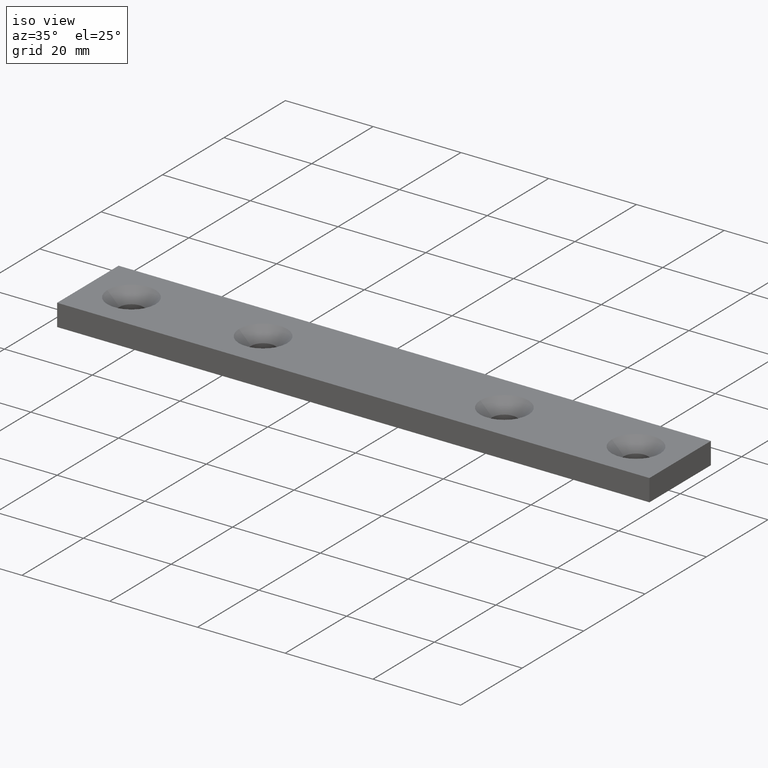
[diagram: clean part render]
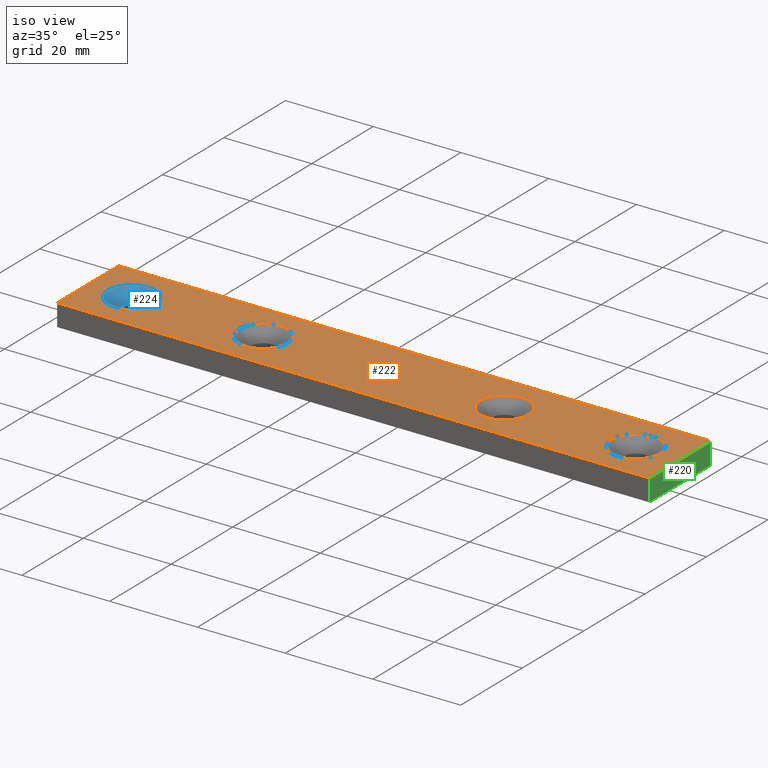
[diagram: same view with three faces highlighted in distinct colors, each labeled with its STEP entity id]
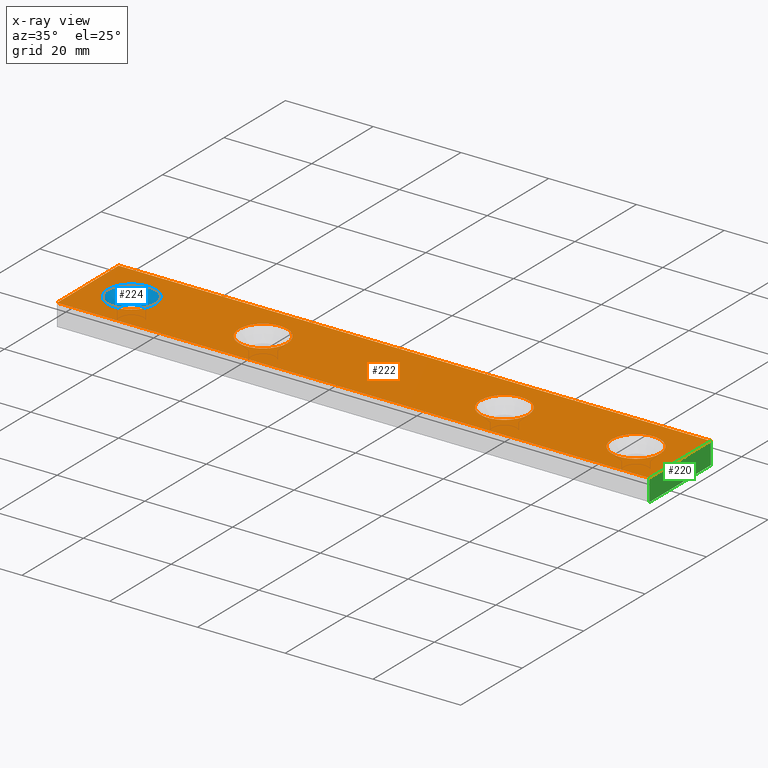
[diagram: x-ray of the same camera — body ghosted, the three highlighted faces saturated]
A machine part, iso view with three faces highlighted in distinct colors.
The next image is the same camera in x-ray (body ghosted, the three faces saturated) — at least one of them is partly hidden behind the body in this view.
Their STEP definitions:

[orange] entity #222 — the highlighted planar face has unit normal (0, 0, 1).
#27=FACE_BOUND('',#75,.T.);
#28=FACE_BOUND('',#76,.T.);
#29=FACE_BOUND('',#77,.T.);
#30=FACE_BOUND('',#78,.T.);
#43=CIRCLE('',#243,5.5);
#44=CIRCLE('',#244,5.5);
#45=CIRCLE('',#245,5.5);
#46=CIRCLE('',#246,5.5);
#56=FACE_OUTER_BOUND('',#74,.T.);
#74=EDGE_LOOP('',(#187,#188,#189,#190));
#75=EDGE_LOOP('',(#191));
#76=EDGE_LOOP('',(#192));
#77=EDGE_LOOP('',(#193));
#78=EDGE_LOOP('',(#194));
#97=LINE('',#333,#109);
#101=LINE('',#340,#113);
#104=LINE('',#346,#116);
#106=LINE('',#349,#118);
#109=VECTOR('',#265,135.);
#113=VECTOR('',#271,19.9999999999991);
#116=VECTOR('',#276,135.);
#118=VECTOR('',#280,19.9999999999991);
#121=VERTEX_POINT('',#330);
#122=VERTEX_POINT('',#332);
#124=VERTEX_POINT('',#338);
#126=VERTEX_POINT('',#344);
#131=VERTEX_POINT('',#360);
#132=VERTEX_POINT('',#362);
#133=VERTEX_POINT('',#364);
#134=VERTEX_POINT('',#366);
#141=EDGE_CURVE('',#122,#121,#97,.T.);
#145=EDGE_CURVE('',#121,#124,#101,.T.);
#148=EDGE_CURVE('',#124,#126,#104,.T.);
#150=EDGE_CURVE('',#126,#122,#106,.T.);
#155=EDGE_CURVE('',#131,#131,#43,.T.);
#156=EDGE_CURVE('',#132,#132,#44,.T.);
#157=EDGE_CURVE('',#133,#133,#45,.T.);
#158=EDGE_CURVE('',#134,#134,#46,.T.);
#187=ORIENTED_EDGE('',*,*,#141,.T.);
#188=ORIENTED_EDGE('',*,*,#145,.T.);
#189=ORIENTED_EDGE('',*,*,#148,.T.);
#190=ORIENTED_EDGE('',*,*,#150,.T.);
#191=ORIENTED_EDGE('',*,*,#155,.F.);
#192=ORIENTED_EDGE('',*,*,#156,.F.);
#193=ORIENTED_EDGE('',*,*,#157,.F.);
#194=ORIENTED_EDGE('',*,*,#158,.F.);
#216=PLANE('',#242);
#222=ADVANCED_FACE('',(#56,#27,#28,#29,#30),#216,.T.);
#242=AXIS2_PLACEMENT_3D('',#359,#291,#292);
#243=AXIS2_PLACEMENT_3D('',#361,#293,#294);
#244=AXIS2_PLACEMENT_3D('',#363,#295,#296);
#245=AXIS2_PLACEMENT_3D('',#365,#297,#298);
#246=AXIS2_PLACEMENT_3D('',#367,#299,#300);
#265=DIRECTION('',(-1.,0.,0.));
#271=DIRECTION('',(0.,-1.,2.58095700089734E-8));
#276=DIRECTION('',(1.,0.,0.));
#280=DIRECTION('',(-6.125368E-17,1.,-2.58095699812178E-8));
#291=DIRECTION('center_axis',(0.,2.580957E-8,1.));
#292=DIRECTION('ref_axis',(1.,0.,0.));
#293=DIRECTION('center_axis',(-1.61487E-16,2.580957E-8,1.));
#294=DIRECTION('ref_axis',(1.,0.,0.));
#295=DIRECTION('center_axis',(-1.61487E-16,2.580957E-8,1.));
#296=DIRECTION('ref_axis',(1.,0.,0.));
#297=DIRECTION('center_axis',(-1.61487E-16,2.580957E-8,1.));
#298=DIRECTION('ref_axis',(1.,0.,0.));
#299=DIRECTION('center_axis',(-1.61487E-16,2.580957E-8,1.));
#300=DIRECTION('ref_axis',(1.,0.,0.));
#330=CARTESIAN_POINT('',(-135.,10.0000001290474,4.9999997419043));
#332=CARTESIAN_POINT('',(-5.512832E-16,10.0000001290474,4.9999997419043));
#333=CARTESIAN_POINT('',(-5.512832E-16,10.0000001290474,4.9999997419043));
#338=CARTESIAN_POINT('',(-135.,-9.99999987095171,5.0000002580957));
#340=CARTESIAN_POINT('',(-135.,10.0000001290474,4.9999997419043));
#344=CARTESIAN_POINT('',(5.589399E-16,-9.99999987095169,5.0000002580957));
#346=CARTESIAN_POINT('',(-135.,-9.99999987095171,5.0000002580957));
#349=CARTESIAN_POINT('',(6.125368E-16,-9.99999987095169,5.0000002580957));
#359=CARTESIAN_POINT('Origin',(-148.500120000331,-12.0001198713083,5.00000030971793));
#360=CARTESIAN_POINT('',(-130.55552872784,1.29048297E-7,4.99999999999927));
#361=CARTESIAN_POINT('Origin',(-125.05552872784,1.29048297E-7,4.99999999999927));
#362=CARTESIAN_POINT('',(-100.55552872784,1.29048301E-7,4.99999999999927));
#363=CARTESIAN_POINT('Origin',(-95.0555287278403,1.29048301E-7,4.99999999999927));
#364=CARTESIAN_POINT('',(-45.5555287278403,1.29048308E-7,4.99999999999927));
#365=CARTESIAN_POINT('Origin',(-40.0555287278403,1.29048308E-7,4.99999999999927));
#366=CARTESIAN_POINT('',(-15.5555287278403,1.29048312E-7,4.99999999999927));
#367=CARTESIAN_POINT('Origin',(-10.0555287278403,1.29048312E-7,4.99999999999927));

[blue] entity #224 — the highlighted conical surface has half-angle 45 deg.
#15=CONICAL_SURFACE('',#249,3.02500000000002,45.0000000000001);
#32=FACE_BOUND('',#82,.T.);
#43=CIRCLE('',#243,5.5);
#47=CIRCLE('',#248,2.75);
#58=FACE_OUTER_BOUND('',#81,.T.);
#81=EDGE_LOOP('',(#197));
#82=EDGE_LOOP('',(#198));
#131=VERTEX_POINT('',#360);
#135=VERTEX_POINT('',#369);
#155=EDGE_CURVE('',#131,#131,#43,.T.);
#159=EDGE_CURVE('',#135,#135,#47,.T.);
#197=ORIENTED_EDGE('',*,*,#155,.T.);
#198=ORIENTED_EDGE('',*,*,#159,.F.);
#224=ADVANCED_FACE('',(#58,#32),#15,.F.);
#243=AXIS2_PLACEMENT_3D('',#361,#293,#294);
#248=AXIS2_PLACEMENT_3D('',#370,#303,#304);
#249=AXIS2_PLACEMENT_3D('',#371,#305,#306);
#293=DIRECTION('center_axis',(-1.61487E-16,2.580957E-8,1.));
#294=DIRECTION('ref_axis',(1.,0.,0.));
#303=DIRECTION('center_axis',(0.,2.580957E-8,1.));
#304=DIRECTION('ref_axis',(1.,0.,0.));
#305=DIRECTION('center_axis',(-1.74000731900355E-17,2.58095682632845E-8,
1.));
#306=DIRECTION('ref_axis',(0.813826036051076,0.581108581114917,-1.49981615785052E-8));
#360=CARTESIAN_POINT('',(-130.55552872784,1.29048297E-7,4.99999999999927));
#361=CARTESIAN_POINT('Origin',(-125.05552872784,1.29048297E-7,4.99999999999927));
#369=CARTESIAN_POINT('',(-127.80552872784,5.8071981E-8,2.24999999999928));
#370=CARTESIAN_POINT('Origin',(-125.05552872784,5.8071981E-8,2.24999999999928));
#371=CARTESIAN_POINT('Origin',(-125.05552872784,6.51696094311482E-8,2.52499999999928));

[green] entity #220 — the highlighted planar face has unit normal (1, 0, 0).
#54=FACE_OUTER_BOUND('',#68,.T.);
#68=EDGE_LOOP('',(#175,#176,#177,#178));
#98=LINE('',#334,#110);
#103=LINE('',#345,#115);
#105=LINE('',#348,#117);
#106=LINE('',#349,#118);
#110=VECTOR('',#266,5.);
#115=VECTOR('',#275,5.);
#117=VECTOR('',#279,19.9999999999991);
#118=VECTOR('',#280,19.9999999999991);
#119=VERTEX_POINT('',#327);
#122=VERTEX_POINT('',#332);
#125=VERTEX_POINT('',#342);
#126=VERTEX_POINT('',#344);
#142=EDGE_CURVE('',#119,#122,#98,.T.);
#147=EDGE_CURVE('',#125,#126,#103,.T.);
#149=EDGE_CURVE('',#125,#119,#105,.T.);
#150=EDGE_CURVE('',#126,#122,#106,.T.);
#175=ORIENTED_EDGE('',*,*,#149,.T.);
#176=ORIENTED_EDGE('',*,*,#142,.T.);
#177=ORIENTED_EDGE('',*,*,#150,.F.);
#178=ORIENTED_EDGE('',*,*,#147,.F.);
#214=PLANE('',#236);
#220=ADVANCED_FACE('',(#54),#214,.T.);
#236=AXIS2_PLACEMENT_3D('',#347,#277,#278);
#266=DIRECTION('',(0.,2.58095709249062E-8,1.));
#275=DIRECTION('',(0.,2.58095709249062E-8,1.));
#277=DIRECTION('center_axis',(1.,0.,0.));
#278=DIRECTION('ref_axis',(0.,0.,-1.));
#279=DIRECTION('',(-6.125368E-17,1.,-2.580957E-8));
#280=DIRECTION('',(-6.125368E-17,1.,-2.58095699812178E-8));
#327=CARTESIAN_POINT('',(-5.512832E-16,9.99999999999954,-2.58095696E-7));
#332=CARTESIAN_POINT('',(-5.512832E-16,10.0000001290474,4.9999997419043));
#334=CARTESIAN_POINT('',(-5.512832E-16,9.99999999999954,-2.58095696E-7));
#342=CARTESIAN_POINT('',(5.589399E-16,-9.99999999999954,2.58095697E-7));
#344=CARTESIAN_POINT('',(5.589399E-16,-9.99999987095169,5.0000002580957));
#345=CARTESIAN_POINT('',(5.589399E-16,-9.99999999999954,2.58095697E-7));
#347=CARTESIAN_POINT('Origin',(5.589399E-16,-9.99999999999954,2.58095697E-7));
#348=CARTESIAN_POINT('',(6.125368E-16,-9.99999999999954,2.58095697E-7));
#349=CARTESIAN_POINT('',(6.125368E-16,-9.99999987095169,5.0000002580957));